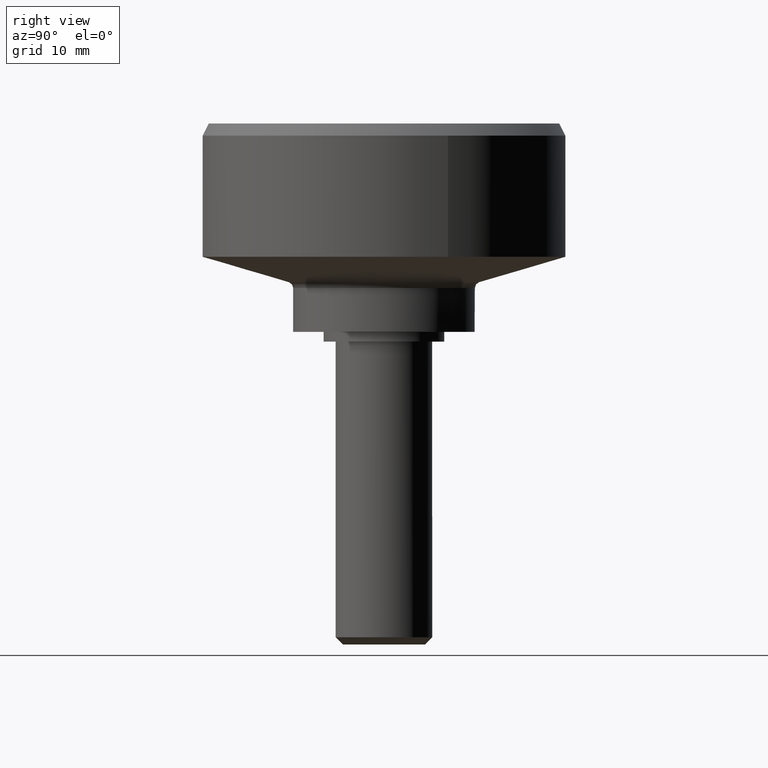
[diagram: clean part render]
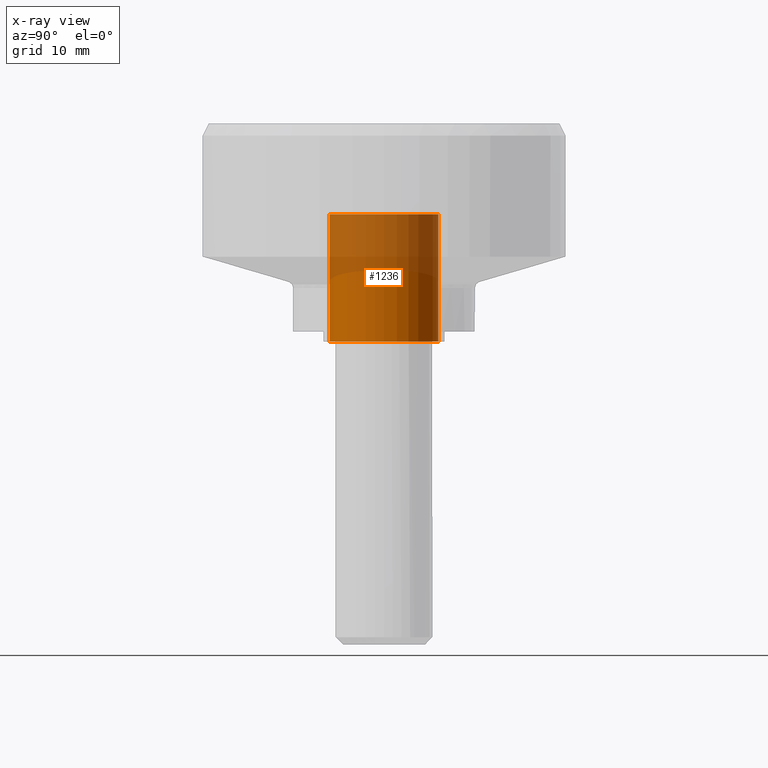
[diagram: x-ray — body ghosted, one internal face saturated and labeled with its STEP entity id]
A machine part, right view, then the same camera in x-ray: the body is ghosted and one INTERNAL B-rep face — a face not visible from any outside direction — is saturated and labeled: STEP entity #1236.
In plain terms, the highlighted face is a freeform B-spline surface patch.
Its self-contained STEP definition (entity closure, byte-faithful):
#1075=CARTESIAN_POINT('',(-0.353065930792999,-4.486128001797682,10.500000000000000));
#1076=VERTEX_POINT('',#1075);
#1090=CARTESIAN_POINT('',(-0.353065930792999,-4.486128001797682,-5.551115E-017));
#1091=VERTEX_POINT('',#1090);
#1092=CARTESIAN_POINT('',(-0.353065930792999,-4.486128001797682,10.500000000000000));
#1093=CARTESIAN_POINT('',(-0.353065930792999,-4.486128001797682,-5.551115E-017));
#1094=QUASI_UNIFORM_CURVE('',1,(#1092,#1093),.UNSPECIFIED.,.F.,.U.);
#1095=EDGE_CURVE('',#1076,#1091,#1094,.T.);
#1112=CARTESIAN_POINT('',(0.353065930792999,4.486128001797682,-5.551115E-017));
#1113=VERTEX_POINT('',#1112);
#1129=CARTESIAN_POINT('',(0.353065930792998,4.486128001797683,10.500000000000000));
#1130=VERTEX_POINT('',#1129);
#1131=CARTESIAN_POINT('',(0.353065930792998,4.486128001797683,10.500000000000000));
#1132=CARTESIAN_POINT('',(0.353065930792999,4.486128001797682,-5.551115E-017));
#1133=QUASI_UNIFORM_CURVE('',1,(#1131,#1132),.UNSPECIFIED.,.F.,.U.);
#1134=EDGE_CURVE('',#1130,#1113,#1133,.T.);
#1154=CARTESIAN_POINT('',(0.353065930775305,4.486128001799074,10.762499999999999));
#1155=CARTESIAN_POINT('',(4.839193932574379,4.133062071023770,10.762500000000003));
#1156=CARTESIAN_POINT('',(4.486128001799074,-0.353065930775305,10.762499999999999));
#1157=CARTESIAN_POINT('',(4.133062071023770,-4.839193932574379,10.762500000000003));
#1158=CARTESIAN_POINT('',(-0.353065930775305,-4.486128001799074,10.762499999999999));
#1159=CARTESIAN_POINT('',(0.353065930775305,4.486128001799074,-0.269062500000000));
#1160=CARTESIAN_POINT('',(4.839193932574379,4.133062071023770,-0.269062500000000));
#1161=CARTESIAN_POINT('',(4.486128001799074,-0.353065930775305,-0.269062500000000));
#1162=CARTESIAN_POINT('',(4.133062071023770,-4.839193932574379,-0.269062500000000));
#1163=CARTESIAN_POINT('',(-0.353065930775305,-4.486128001799074,-0.269062500000000));
#1171=(BOUNDED_SURFACE()B_SPLINE_SURFACE(2,1,((#1154,#1159),(#1155,#1160),(#1156,#1161),(#1157,#1162),(#1158,#1163)),.UNSPECIFIED.,.F.,.F.,.U.)B_SPLINE_SURFACE_WITH_KNOTS((3,2,3),(2,2),(0.0,7.455844122715707,14.911688245431410),(0.0,11.031562500000010),.UNSPECIFIED.)GEOMETRIC_REPRESENTATION_ITEM()RATIONAL_B_SPLINE_SURFACE(((1.0,1.0),(0.707106781186548,0.707106781186548),(1.0,1.0),(0.707106781186548,0.707106781186548),(1.0,1.0)))REPRESENTATION_ITEM('')SURFACE());
#1172=CARTESIAN_POINT('',(4.500000000000000,0.0,10.500000000000000));
#1173=VERTEX_POINT('',#1172);
#1174=CARTESIAN_POINT('',(-0.353065930792999,-4.486128001797682,10.500000000000002));
#1175=CARTESIAN_POINT('',(-0.176805481552291,-4.500000000000000,10.500000000000004));
#1176=CARTESIAN_POINT('',(0.0,-4.500000000000000,10.500000000000000));
#1177=CARTESIAN_POINT('',(4.500000000000000,-4.500000000000000,10.500000000000000));
#1178=CARTESIAN_POINT('',(4.500000000000000,0.0,10.500000000000000));
#1186=(BOUNDED_CURVE()B_SPLINE_CURVE(2,(#1174,#1175,#1176,#1177,#1178),.UNSPECIFIED.,.F.,.U.)B_SPLINE_CURVE_WITH_KNOTS((3,2,3),(0.236331300631415,0.250000000000000,0.500000000000000),.UNSPECIFIED.)CURVE()GEOMETRIC_REPRESENTATION_ITEM()RATIONAL_B_SPLINE_CURVE((0.969723356168993,0.983986122579766,1.0,0.707106781186547,1.0))REPRESENTATION_ITEM(''));
#1187=EDGE_CURVE('',#1076,#1173,#1186,.T.);
#1188=ORIENTED_EDGE('',*,*,#1187,.T.);
#1189=CARTESIAN_POINT('',(4.500000000000000,0.0,10.500000000000000));
#1190=CARTESIAN_POINT('',(4.500000000000001,4.159757212428998,10.500000000000000));
#1191=CARTESIAN_POINT('',(0.353065930792998,4.486128001797683,10.499999999999996));
#1199=(BOUNDED_CURVE()B_SPLINE_CURVE(2,(#1189,#1190,#1191),.UNSPECIFIED.,.F.,.U.)B_SPLINE_CURVE_WITH_KNOTS((3,3),(0.500000000000000,0.736331300631414),.UNSPECIFIED.)CURVE()GEOMETRIC_REPRESENTATION_ITEM()RATIONAL_B_SPLINE_CURVE((1.0,0.723120658606782,0.969723356168992))REPRESENTATION_ITEM(''));
#1200=EDGE_CURVE('',#1173,#1130,#1199,.T.);
#1201=ORIENTED_EDGE('',*,*,#1200,.T.);
#1202=ORIENTED_EDGE('',*,*,#1134,.T.);
#1203=CARTESIAN_POINT('',(4.500000000000000,0.0,0.0));
#1204=VERTEX_POINT('',#1203);
#1205=CARTESIAN_POINT('',(4.500000000000000,0.0,0.0));
#1206=CARTESIAN_POINT('',(4.500000000000001,4.159757212428998,0.0));
#1207=CARTESIAN_POINT('',(0.353065930792999,4.486128001797682,-5.551115E-017));
#1215=(BOUNDED_CURVE()B_SPLINE_CURVE(2,(#1205,#1206,#1207),.UNSPECIFIED.,.F.,.U.)B_SPLINE_CURVE_WITH_KNOTS((3,3),(0.500000000000000,0.736331300631414),.UNSPECIFIED.)CURVE()GEOMETRIC_REPRESENTATION_ITEM()RATIONAL_B_SPLINE_CURVE((1.0,0.723120658606782,0.969723356168992))REPRESENTATION_ITEM(''));
#1216=EDGE_CURVE('',#1204,#1113,#1215,.T.);
#1217=ORIENTED_EDGE('',*,*,#1216,.F.);
#1218=CARTESIAN_POINT('',(-0.353065930792999,-4.486128001797682,-5.551115E-017));
#1219=CARTESIAN_POINT('',(-0.176805481552291,-4.500000000000000,0.0));
#1220=CARTESIAN_POINT('',(0.0,-4.500000000000000,0.0));
#1221=CARTESIAN_POINT('',(4.500000000000000,-4.500000000000000,0.0));
#1222=CARTESIAN_POINT('',(4.500000000000000,0.0,0.0));
#1230=(BOUNDED_CURVE()B_SPLINE_CURVE(2,(#1218,#1219,#1220,#1221,#1222),.UNSPECIFIED.,.F.,.U.)B_SPLINE_CURVE_WITH_KNOTS((3,2,3),(0.236331300631415,0.250000000000000,0.500000000000000),.UNSPECIFIED.)CURVE()GEOMETRIC_REPRESENTATION_ITEM()RATIONAL_B_SPLINE_CURVE((0.969723356168993,0.983986122579766,1.0,0.707106781186547,1.0))REPRESENTATION_ITEM(''));
#1231=EDGE_CURVE('',#1091,#1204,#1230,.T.);
#1232=ORIENTED_EDGE('',*,*,#1231,.F.);
#1233=ORIENTED_EDGE('',*,*,#1095,.F.);
#1234=EDGE_LOOP('',(#1188,#1201,#1202,#1217,#1232,#1233));
#1235=FACE_OUTER_BOUND('',#1234,.T.);
#1236=ADVANCED_FACE('',(#1235),#1171,.F.);